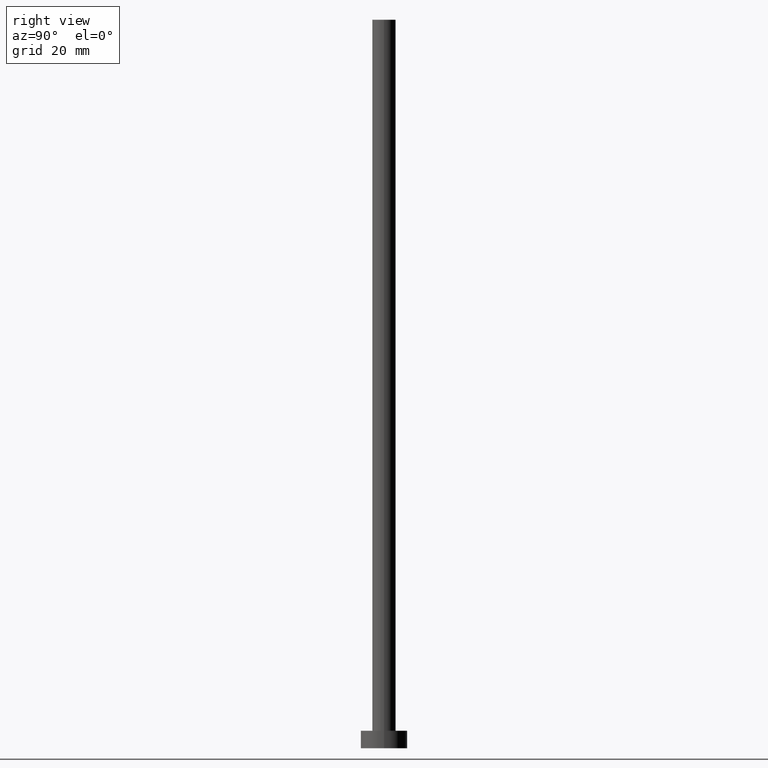
[diagram: clean part render]
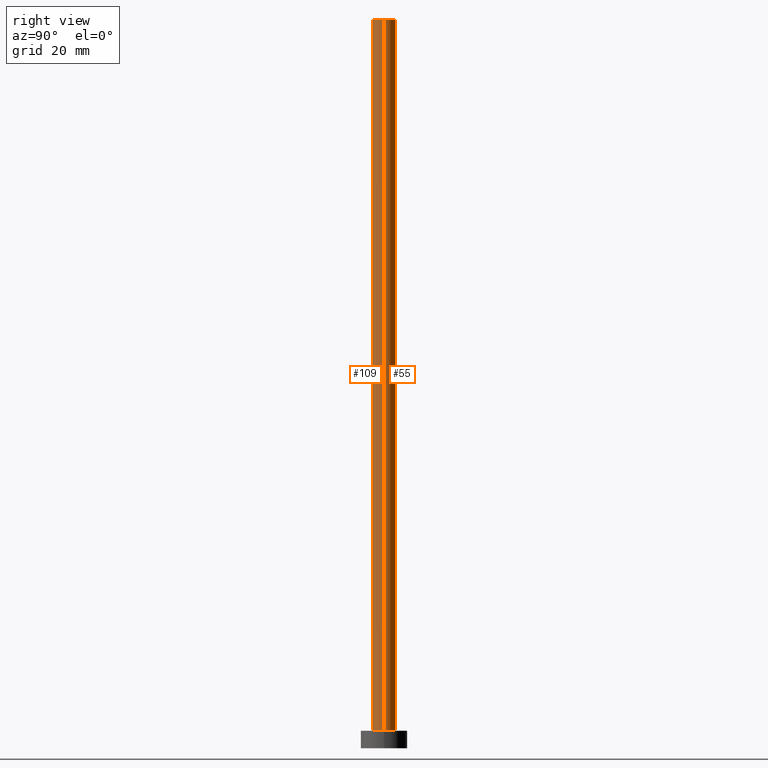
[diagram: same view with one multi-face feature highlighted, each face labeled with its STEP entity id]
A machine part, right view. The highlighted faces form ONE feature: a constant-radius fillet chain: 2 tangent blend faces with common blend radius 2 mm. The faces share edges in the B-rep.
Their STEP definitions:
[1] entity #55 (Cylinder):
#8 = ORIENTED_EDGE ( 'NONE', *, *, #83, .F. ) ;
#10 = ORIENTED_EDGE ( 'NONE', *, *, #111, .T. ) ;
#13 = DIRECTION ( 'NONE',  ( 0.000000000000000000, 0.000000000000000000, 1.000000000000000000 ) ) ;
#25 = AXIS2_PLACEMENT_3D ( 'NONE', #206, #112, #184 ) ;
#31 = VERTEX_POINT ( 'NONE', #172 ) ;
#36 = DIRECTION ( 'NONE',  ( 1.000000000000000000, 0.000000000000000000, 0.000000000000000000 ) ) ;
#38 = DIRECTION ( 'NONE',  ( 0.000000000000000000, 0.000000000000000000, 1.000000000000000000 ) ) ;
#42 = LINE ( 'NONE', #121, #74 ) ;
#50 = VERTEX_POINT ( 'NONE', #248 ) ;
#55 = ADVANCED_FACE ( 'NONE', ( #155 ), #209, .T. ) ;
#74 = VECTOR ( 'NONE', #194, 1000.000000000000000 ) ;
#81 = LINE ( 'NONE', #236, #130 ) ;
#83 = EDGE_CURVE ( 'NONE', #154, #31, #201, .T. ) ;
#86 = CARTESIAN_POINT ( 'NONE',  ( 0.000000000000000000, 0.000000000000000000, 3.000000000000000000 ) ) ;
#111 = EDGE_CURVE ( 'NONE', #187, #50, #193, .T. ) ;
#112 = DIRECTION ( 'NONE',  ( -0.000000000000000000, -0.000000000000000000, -1.000000000000000000 ) ) ;
#121 = CARTESIAN_POINT ( 'NONE',  ( 2.000000000000000000, 2.449293598294705921E-16, 125.0000000000000000 ) ) ;
#125 = AXIS2_PLACEMENT_3D ( 'NONE', #86, #38, #36 ) ;
#130 = VECTOR ( 'NONE', #220, 1000.000000000000000 ) ;
#140 = CARTESIAN_POINT ( 'NONE',  ( 2.000000000000000000, 2.449293598294705921E-16, 125.0000000000000000 ) ) ;
#154 = VERTEX_POINT ( 'NONE', #140 ) ;
#155 = FACE_OUTER_BOUND ( 'NONE', #166, .T. ) ;
#166 = EDGE_LOOP ( 'NONE', ( #8, #171, #10, #227 ) ) ;
#171 = ORIENTED_EDGE ( 'NONE', *, *, #207, .T. ) ;
#172 = CARTESIAN_POINT ( 'NONE',  ( -2.000000000000000000, 0.000000000000000000, 125.0000000000000000 ) ) ;
#176 = CARTESIAN_POINT ( 'NONE',  ( 0.000000000000000000, 0.000000000000000000, 125.0000000000000000 ) ) ;
#184 = DIRECTION ( 'NONE',  ( -1.000000000000000000, 0.000000000000000000, 0.000000000000000000 ) ) ;
#187 = VERTEX_POINT ( 'NONE', #214 ) ;
#193 = CIRCLE ( 'NONE', #125, 2.000000000000000000 ) ;
#194 = DIRECTION ( 'NONE',  ( -0.000000000000000000, -0.000000000000000000, -1.000000000000000000 ) ) ;
#201 = CIRCLE ( 'NONE', #230, 2.000000000000000000 ) ;
#206 = CARTESIAN_POINT ( 'NONE',  ( 0.000000000000000000, 0.000000000000000000, 125.0000000000000000 ) ) ;
#207 = EDGE_CURVE ( 'NONE', #154, #187, #42, .T. ) ;
#209 = CYLINDRICAL_SURFACE ( 'NONE', #25, 2.000000000000000000 ) ;
#212 = DIRECTION ( 'NONE',  ( 1.000000000000000000, 0.000000000000000000, 0.000000000000000000 ) ) ;
#214 = CARTESIAN_POINT ( 'NONE',  ( 2.000000000000000000, 2.449293598294705921E-16, 3.000000000000000000 ) ) ;
#220 = DIRECTION ( 'NONE',  ( -0.000000000000000000, -0.000000000000000000, -1.000000000000000000 ) ) ;
#227 = ORIENTED_EDGE ( 'NONE', *, *, #240, .F. ) ;
#230 = AXIS2_PLACEMENT_3D ( 'NONE', #176, #13, #212 ) ;
#236 = CARTESIAN_POINT ( 'NONE',  ( -2.000000000000000000, 0.000000000000000000, 125.0000000000000000 ) ) ;
#240 = EDGE_CURVE ( 'NONE', #31, #50, #81, .T. ) ;
#248 = CARTESIAN_POINT ( 'NONE',  ( -2.000000000000000000, 0.000000000000000000, 3.000000000000000000 ) ) ;
[2] entity #109 (Cylinder):
#7 = CIRCLE ( 'NONE', #185, 2.000000000000000000 ) ;
#31 = VERTEX_POINT ( 'NONE', #172 ) ;
#35 = CIRCLE ( 'NONE', #246, 2.000000000000000000 ) ;
#42 = LINE ( 'NONE', #121, #74 ) ;
#43 = DIRECTION ( 'NONE',  ( 1.000000000000000000, 0.000000000000000000, 0.000000000000000000 ) ) ;
#50 = VERTEX_POINT ( 'NONE', #248 ) ;
#52 = ORIENTED_EDGE ( 'NONE', *, *, #240, .T. ) ;
#74 = VECTOR ( 'NONE', #194, 1000.000000000000000 ) ;
#81 = LINE ( 'NONE', #236, #130 ) ;
#85 = DIRECTION ( 'NONE',  ( -0.000000000000000000, -0.000000000000000000, -1.000000000000000000 ) ) ;
#90 = AXIS2_PLACEMENT_3D ( 'NONE', #191, #85, #157 ) ;
#94 = ORIENTED_EDGE ( 'NONE', *, *, #207, .F. ) ;
#101 = EDGE_CURVE ( 'NONE', #31, #154, #7, .T. ) ;
#109 = ADVANCED_FACE ( 'NONE', ( #197 ), #156, .T. ) ;
#120 = DIRECTION ( 'NONE',  ( 0.000000000000000000, 0.000000000000000000, 1.000000000000000000 ) ) ;
#121 = CARTESIAN_POINT ( 'NONE',  ( 2.000000000000000000, 2.449293598294705921E-16, 125.0000000000000000 ) ) ;
#130 = VECTOR ( 'NONE', #220, 1000.000000000000000 ) ;
#140 = CARTESIAN_POINT ( 'NONE',  ( 2.000000000000000000, 2.449293598294705921E-16, 125.0000000000000000 ) ) ;
#150 = ORIENTED_EDGE ( 'NONE', *, *, #245, .T. ) ;
#154 = VERTEX_POINT ( 'NONE', #140 ) ;
#156 = CYLINDRICAL_SURFACE ( 'NONE', #90, 2.000000000000000000 ) ;
#157 = DIRECTION ( 'NONE',  ( -1.000000000000000000, 0.000000000000000000, 0.000000000000000000 ) ) ;
#172 = CARTESIAN_POINT ( 'NONE',  ( -2.000000000000000000, 0.000000000000000000, 125.0000000000000000 ) ) ;
#177 = CARTESIAN_POINT ( 'NONE',  ( 0.000000000000000000, 0.000000000000000000, 125.0000000000000000 ) ) ;
#178 = CARTESIAN_POINT ( 'NONE',  ( 0.000000000000000000, 0.000000000000000000, 3.000000000000000000 ) ) ;
#185 = AXIS2_PLACEMENT_3D ( 'NONE', #177, #120, #234 ) ;
#187 = VERTEX_POINT ( 'NONE', #214 ) ;
#191 = CARTESIAN_POINT ( 'NONE',  ( 0.000000000000000000, 0.000000000000000000, 125.0000000000000000 ) ) ;
#194 = DIRECTION ( 'NONE',  ( -0.000000000000000000, -0.000000000000000000, -1.000000000000000000 ) ) ;
#197 = FACE_OUTER_BOUND ( 'NONE', #225, .T. ) ;
#200 = DIRECTION ( 'NONE',  ( 0.000000000000000000, 0.000000000000000000, 1.000000000000000000 ) ) ;
#207 = EDGE_CURVE ( 'NONE', #154, #187, #42, .T. ) ;
#214 = CARTESIAN_POINT ( 'NONE',  ( 2.000000000000000000, 2.449293598294705921E-16, 3.000000000000000000 ) ) ;
#220 = DIRECTION ( 'NONE',  ( -0.000000000000000000, -0.000000000000000000, -1.000000000000000000 ) ) ;
#225 = EDGE_LOOP ( 'NONE', ( #94, #228, #52, #150 ) ) ;
#228 = ORIENTED_EDGE ( 'NONE', *, *, #101, .F. ) ;
#234 = DIRECTION ( 'NONE',  ( 1.000000000000000000, 0.000000000000000000, 0.000000000000000000 ) ) ;
#236 = CARTESIAN_POINT ( 'NONE',  ( -2.000000000000000000, 0.000000000000000000, 125.0000000000000000 ) ) ;
#240 = EDGE_CURVE ( 'NONE', #31, #50, #81, .T. ) ;
#245 = EDGE_CURVE ( 'NONE', #50, #187, #35, .T. ) ;
#246 = AXIS2_PLACEMENT_3D ( 'NONE', #178, #200, #43 ) ;
#248 = CARTESIAN_POINT ( 'NONE',  ( -2.000000000000000000, 0.000000000000000000, 3.000000000000000000 ) ) ;